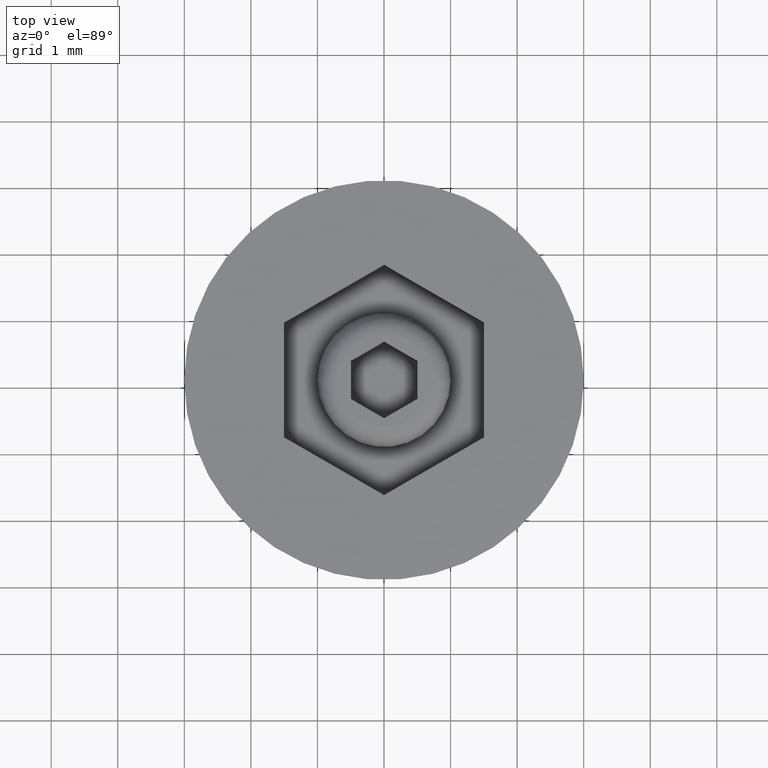
[diagram: clean part render]
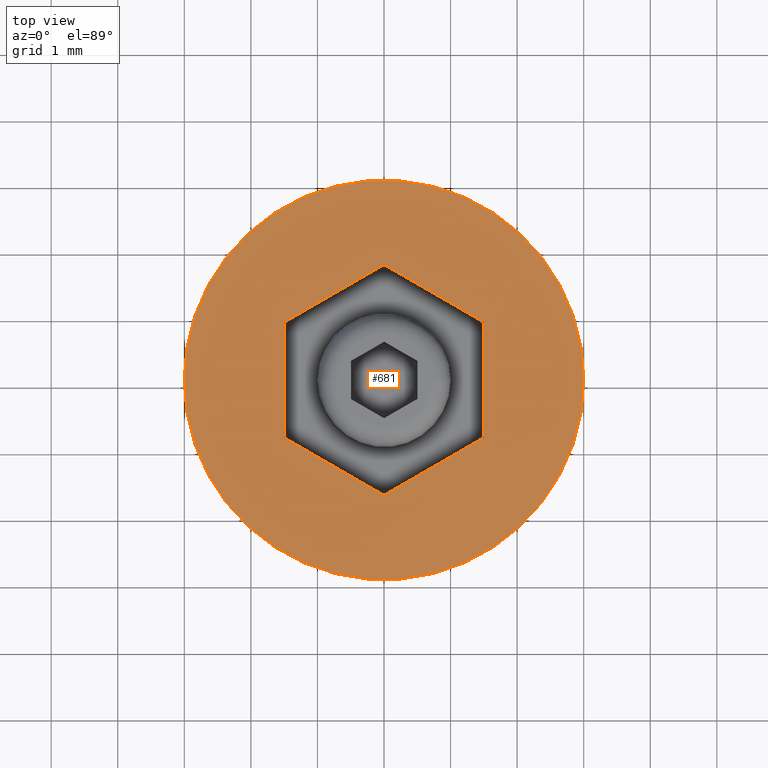
[diagram: same view with one face highlighted and labeled with its STEP entity id]
A machine part, top view. The second image highlights one B-rep face of the part: STEP entity #681.
In plain terms, the highlighted planar face has unit normal (0, -0, 1).
Its self-contained STEP definition (entity closure, byte-faithful):
#42 = VERTEX_POINT ( 'NONE', #414 ) ;
#89 = ORIENTED_EDGE ( 'NONE', *, *, #395, .F. ) ;
#132 = VERTEX_POINT ( 'NONE', #1732 ) ;
#141 = AXIS2_PLACEMENT_3D ( 'NONE', #1333, #861, #1358 ) ;
#148 = EDGE_CURVE ( 'NONE', #1457, #132, #1290, .T. ) ;
#157 = DIRECTION ( 'NONE',  ( 0.000000000000000000, -1.000000000000000000, 0.000000000000000000 ) ) ;
#161 = ORIENTED_EDGE ( 'NONE', *, *, #1239, .F. ) ;
#171 = LINE ( 'NONE', #615, #1651 ) ;
#212 = EDGE_LOOP ( 'NONE', ( #1217, #1377 ) ) ;
#213 = CARTESIAN_POINT ( 'NONE',  ( 0.000000000000000000, 0.000000000000000000, 0.000000000000000000 ) ) ;
#250 = DIRECTION ( 'NONE',  ( -0.000000000000000000, -0.000000000000000000, 1.000000000000000000 ) ) ;
#268 = VERTEX_POINT ( 'NONE', #1708 ) ;
#292 = ORIENTED_EDGE ( 'NONE', *, *, #1550, .F. ) ;
#299 = EDGE_CURVE ( 'NONE', #1364, #1517, #987, .T. ) ;
#305 = DIRECTION ( 'NONE',  ( -0.8660254037844387076, -0.4999999999999997780, 0.000000000000000000 ) ) ;
#312 = VECTOR ( 'NONE', #1369, 1000.000000000000227 ) ;
#317 = CARTESIAN_POINT ( 'NONE',  ( -1.500000000000000444, -0.8660254037844387076, 0.000000000000000000 ) ) ;
#384 = DIRECTION ( 'NONE',  ( 0.000000000000000000, -0.000000000000000000, 1.000000000000000000 ) ) ;
#393 = CARTESIAN_POINT ( 'NONE',  ( 1.500000000000000444, 0.8660254037844385966, 0.000000000000000000 ) ) ;
#395 = EDGE_CURVE ( 'NONE', #132, #42, #924, .T. ) ;
#409 = CIRCLE ( 'NONE', #141, 3.000000000000000000 ) ;
#414 = CARTESIAN_POINT ( 'NONE',  ( 1.500000000000000444, 0.8660254037844385966, 0.000000000000000000 ) ) ;
#427 = CARTESIAN_POINT ( 'NONE',  ( -3.346587165010555089E-16, -1.732050807568877859, 0.000000000000000000 ) ) ;
#439 = CARTESIAN_POINT ( 'NONE',  ( -1.500000000000000444, 0.8660254037844389297, 0.000000000000000000 ) ) ;
#451 = CARTESIAN_POINT ( 'NONE',  ( -3.346587165010555089E-16, -1.732050807568877859, 0.000000000000000000 ) ) ;
#482 = FACE_OUTER_BOUND ( 'NONE', #212, .T. ) ;
#490 = VECTOR ( 'NONE', #1207, 1000.000000000000000 ) ;
#517 = DIRECTION ( 'NONE',  ( 1.000000000000000000, 0.000000000000000000, 0.000000000000000000 ) ) ;
#530 = VECTOR ( 'NONE', #623, 1000.000000000000114 ) ;
#615 = CARTESIAN_POINT ( 'NONE',  ( 0.000000000000000000, 1.732050807568877415, 0.000000000000000000 ) ) ;
#623 = DIRECTION ( 'NONE',  ( 0.8660254037844384856, -0.5000000000000002220, 0.000000000000000000 ) ) ;
#634 = CARTESIAN_POINT ( 'NONE',  ( 1.500000000000000444, -0.8660254037844393737, 0.000000000000000000 ) ) ;
#656 = CARTESIAN_POINT ( 'NONE',  ( 3.000000000000000000, 0.000000000000000000, 0.000000000000000000 ) ) ;
#681 = ADVANCED_FACE ( 'NONE', ( #796, #482 ), #913, .T. ) ;
#747 = VECTOR ( 'NONE', #1015, 1000.000000000000114 ) ;
#766 = ORIENTED_EDGE ( 'NONE', *, *, #148, .F. ) ;
#796 = FACE_BOUND ( 'NONE', #959, .T. ) ;
#803 = ORIENTED_EDGE ( 'NONE', *, *, #1632, .F. ) ;
#861 = DIRECTION ( 'NONE',  ( -0.000000000000000000, -0.000000000000000000, 1.000000000000000000 ) ) ;
#863 = VECTOR ( 'NONE', #157, 1000.000000000000000 ) ;
#896 = EDGE_CURVE ( 'NONE', #268, #1074, #1112, .T. ) ;
#898 = AXIS2_PLACEMENT_3D ( 'NONE', #1792, #384, #1321 ) ;
#913 = PLANE ( 'NONE',  #898 ) ;
#924 = LINE ( 'NONE', #634, #490 ) ;
#959 = EDGE_LOOP ( 'NONE', ( #803, #89, #766, #292, #1680, #161 ) ) ;
#987 = CIRCLE ( 'NONE', #1431, 3.000000000000000000 ) ;
#1015 = DIRECTION ( 'NONE',  ( 0.8660254037844388186, 0.4999999999999996669, 0.000000000000000000 ) ) ;
#1033 = VERTEX_POINT ( 'NONE', #1053 ) ;
#1053 = CARTESIAN_POINT ( 'NONE',  ( 1.084202172485504434E-16, 1.732050807568877637, 0.000000000000000000 ) ) ;
#1074 = VERTEX_POINT ( 'NONE', #1208 ) ;
#1082 = LINE ( 'NONE', #393, #312 ) ;
#1112 = LINE ( 'NONE', #439, #863 ) ;
#1207 = DIRECTION ( 'NONE',  ( 0.000000000000000000, 1.000000000000000000, 0.000000000000000000 ) ) ;
#1208 = CARTESIAN_POINT ( 'NONE',  ( -1.500000000000000444, -0.8660254037844387076, 0.000000000000000000 ) ) ;
#1217 = ORIENTED_EDGE ( 'NONE', *, *, #299, .T. ) ;
#1239 = EDGE_CURVE ( 'NONE', #1033, #268, #171, .T. ) ;
#1290 = LINE ( 'NONE', #451, #747 ) ;
#1321 = DIRECTION ( 'NONE',  ( 1.000000000000000000, 0.000000000000000000, 0.000000000000000000 ) ) ;
#1333 = CARTESIAN_POINT ( 'NONE',  ( 0.000000000000000000, 0.000000000000000000, 0.000000000000000000 ) ) ;
#1358 = DIRECTION ( 'NONE',  ( 1.000000000000000000, 0.000000000000000000, 0.000000000000000000 ) ) ;
#1364 = VERTEX_POINT ( 'NONE', #656 ) ;
#1369 = DIRECTION ( 'NONE',  ( -0.8660254037844385966, 0.4999999999999998890, 0.000000000000000000 ) ) ;
#1377 = ORIENTED_EDGE ( 'NONE', *, *, #1606, .T. ) ;
#1431 = AXIS2_PLACEMENT_3D ( 'NONE', #213, #250, #517 ) ;
#1457 = VERTEX_POINT ( 'NONE', #427 ) ;
#1463 = CARTESIAN_POINT ( 'NONE',  ( -3.000000000000000000, 3.673940397442059868E-16, 0.000000000000000000 ) ) ;
#1476 = LINE ( 'NONE', #317, #530 ) ;
#1517 = VERTEX_POINT ( 'NONE', #1463 ) ;
#1550 = EDGE_CURVE ( 'NONE', #1074, #1457, #1476, .T. ) ;
#1606 = EDGE_CURVE ( 'NONE', #1517, #1364, #409, .T. ) ;
#1632 = EDGE_CURVE ( 'NONE', #42, #1033, #1082, .T. ) ;
#1651 = VECTOR ( 'NONE', #305, 1000.000000000000114 ) ;
#1680 = ORIENTED_EDGE ( 'NONE', *, *, #896, .F. ) ;
#1708 = CARTESIAN_POINT ( 'NONE',  ( -1.500000000000000444, 0.8660254037844389297, 0.000000000000000000 ) ) ;
#1732 = CARTESIAN_POINT ( 'NONE',  ( 1.500000000000000444, -0.8660254037844393737, 0.000000000000000000 ) ) ;
#1792 = CARTESIAN_POINT ( 'NONE',  ( 0.000000000000000000, 0.000000000000000000, 0.000000000000000000 ) ) ;